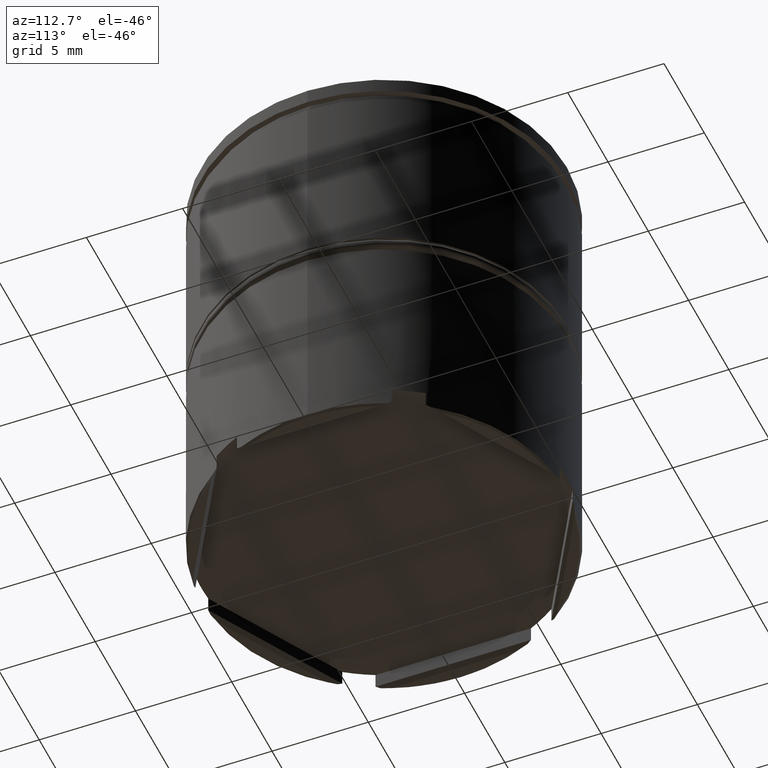
[diagram: clean part render]
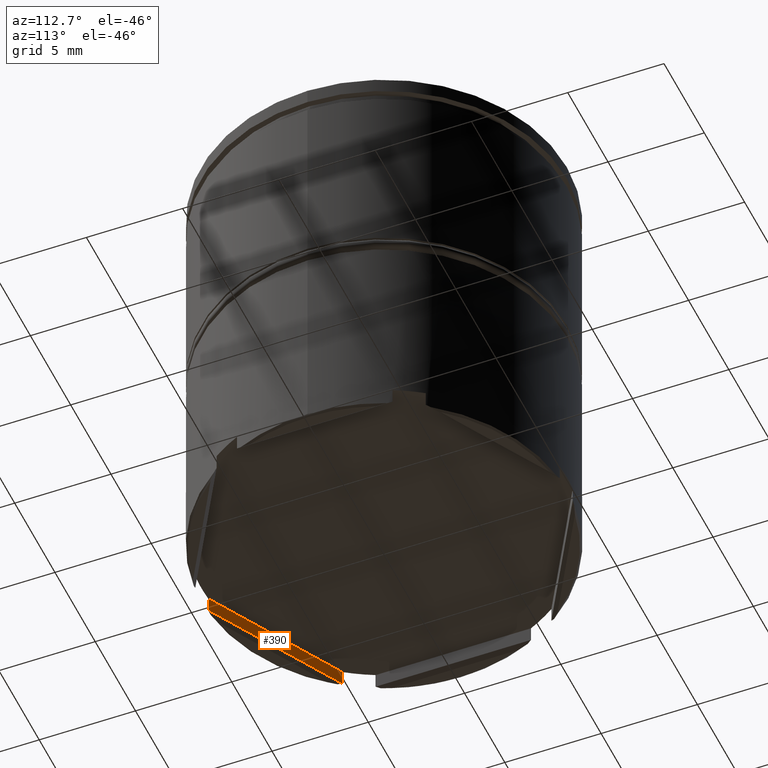
[diagram: same view with one face highlighted and labeled with its STEP entity id]
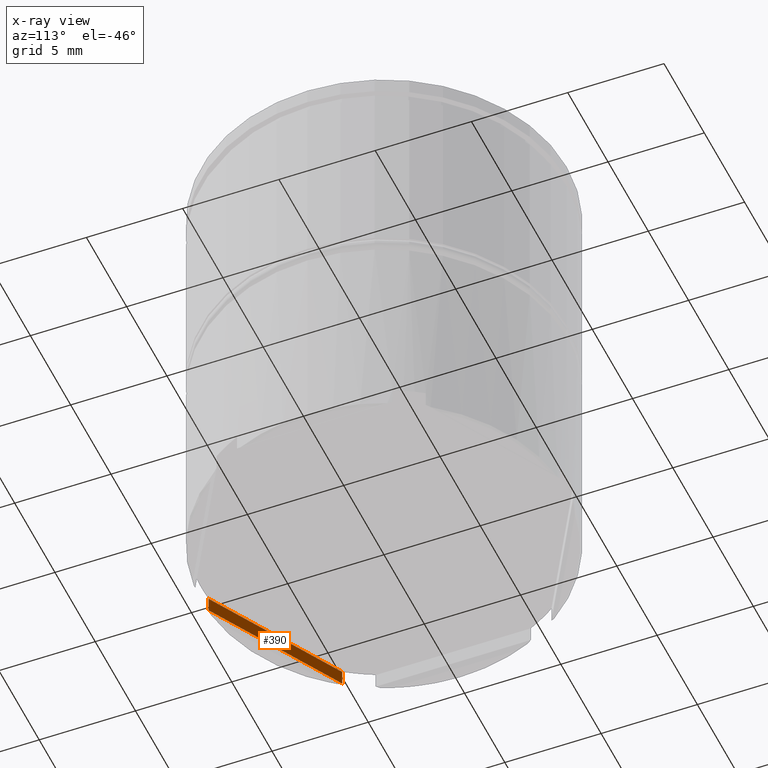
[diagram: x-ray of the same camera — body ghosted, the highlighted face saturated]
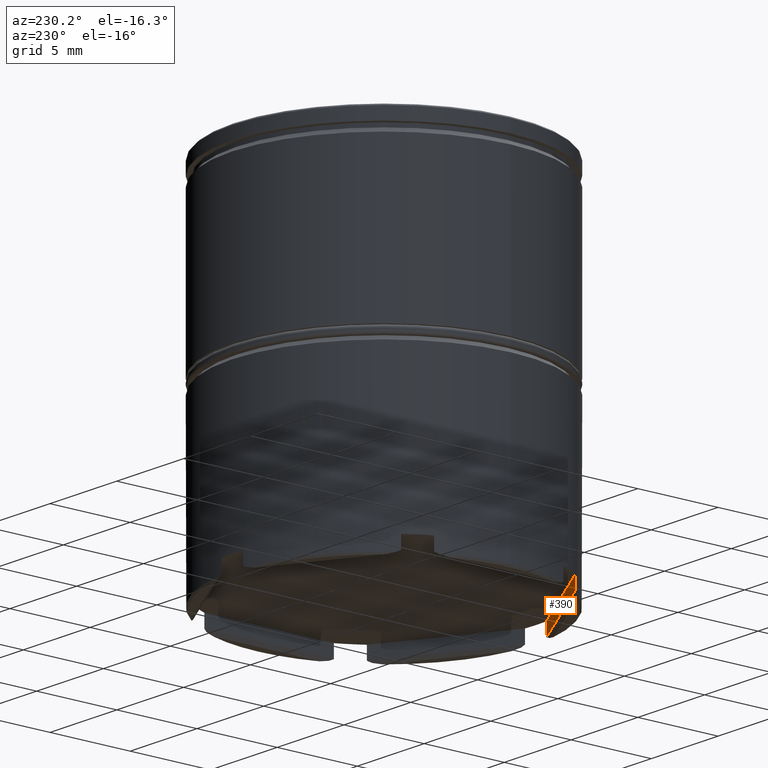
[diagram: same view with one face highlighted and labeled with its STEP entity id]
A machine part, auxiliary view. The second image highlights one B-rep face of the part: STEP entity #390.
The next image is the same camera in x-ray: the body ghosted, the highlighted face saturated — about 0% of this face is hidden behind the body in this view.
A second angle (auxiliary view) of the same face is appended — the face is thin or edge-on in the first view.
In plain terms, the highlighted planar face has unit normal (-0.5, -0.866, 0).
Its self-contained STEP definition (entity closure, byte-faithful):
#97 = CARTESIAN_POINT ( 'NONE',  ( -7.795354059319314466, -5.429774865485112123, -22.29999999999999716 ) ) ;
#183 = DIRECTION ( 'NONE',  ( -0.000000000000000000, -0.000000000000000000, 1.000000000000000000 ) ) ;
#251 = VERTEX_POINT ( 'NONE', #364 ) ;
#295 = CARTESIAN_POINT ( 'NONE',  ( -7.795354059319314466, -5.429774865485112123, 0.000000000000000000 ) ) ;
#319 = CARTESIAN_POINT ( 'NONE',  ( -0.8046459406806840686, -9.465862079607228807, -21.50000000000000000 ) ) ;
#364 = CARTESIAN_POINT ( 'NONE',  ( -7.795354059319314466, -5.429774865485112123, -21.50000000000000000 ) ) ;
#390 = ADVANCED_FACE ( 'NONE', ( #1023 ), #392, .F. ) ;
#392 = PLANE ( 'NONE',  #623 ) ;
#455 = VECTOR ( 'NONE', #183, 1000.000000000000000 ) ;
#529 = EDGE_CURVE ( 'NONE', #936, #577, #840, .T. ) ;
#550 = LINE ( 'NONE', #809, #650 ) ;
#577 = VERTEX_POINT ( 'NONE', #1402 ) ;
#623 = AXIS2_PLACEMENT_3D ( 'NONE', #1413, #775, #660 ) ;
#650 = VECTOR ( 'NONE', #1175, 1000.000000000000227 ) ;
#660 = DIRECTION ( 'NONE',  ( 0.8660254037844385966, -0.5000000000000000000, 0.000000000000000000 ) ) ;
#680 = LINE ( 'NONE', #295, #455 ) ;
#682 = VECTOR ( 'NONE', #771, 999.9999999999998863 ) ;
#687 = ORIENTED_EDGE ( 'NONE', *, *, #529, .T. ) ;
#735 = ORIENTED_EDGE ( 'NONE', *, *, #1212, .T. ) ;
#771 = DIRECTION ( 'NONE',  ( -0.8660254037844387076, 0.5000000000000001110, 0.000000000000000000 ) ) ;
#775 = DIRECTION ( 'NONE',  ( -0.5000000000000001110, -0.8660254037844387076, 0.000000000000000000 ) ) ;
#809 = CARTESIAN_POINT ( 'NONE',  ( -8.646952822150503169E-16, -9.930424630061562397, -21.50000000000000000 ) ) ;
#840 = LINE ( 'NONE', #1377, #850 ) ;
#850 = VECTOR ( 'NONE', #1477, 1000.000000000000000 ) ;
#891 = EDGE_LOOP ( 'NONE', ( #687, #1130, #735, #1586 ) ) ;
#898 = LINE ( 'NONE', #1423, #682 ) ;
#936 = VERTEX_POINT ( 'NONE', #319 ) ;
#1023 = FACE_OUTER_BOUND ( 'NONE', #891, .T. ) ;
#1130 = ORIENTED_EDGE ( 'NONE', *, *, #1558, .T. ) ;
#1174 = EDGE_CURVE ( 'NONE', #936, #251, #550, .T. ) ;
#1175 = DIRECTION ( 'NONE',  ( -0.8660254037844385966, 0.5000000000000000000, 0.000000000000000000 ) ) ;
#1212 = EDGE_CURVE ( 'NONE', #1334, #251, #680, .T. ) ;
#1334 = VERTEX_POINT ( 'NONE', #97 ) ;
#1377 = CARTESIAN_POINT ( 'NONE',  ( -0.8046459406806840686, -9.465862079607228807, 0.000000000000000000 ) ) ;
#1402 = CARTESIAN_POINT ( 'NONE',  ( -0.8046459406806840686, -9.465862079607228807, -22.29999999999999716 ) ) ;
#1413 = CARTESIAN_POINT ( 'NONE',  ( -8.646952822150503169E-16, -9.930424630061562397, -21.50000000000000000 ) ) ;
#1423 = CARTESIAN_POINT ( 'NONE',  ( -7.586335345030999378, -5.550451876445142929, -22.29999999999999716 ) ) ;
#1477 = DIRECTION ( 'NONE',  ( 0.000000000000000000, 0.000000000000000000, -1.000000000000000000 ) ) ;
#1558 = EDGE_CURVE ( 'NONE', #577, #1334, #898, .T. ) ;
#1586 = ORIENTED_EDGE ( 'NONE', *, *, #1174, .F. ) ;